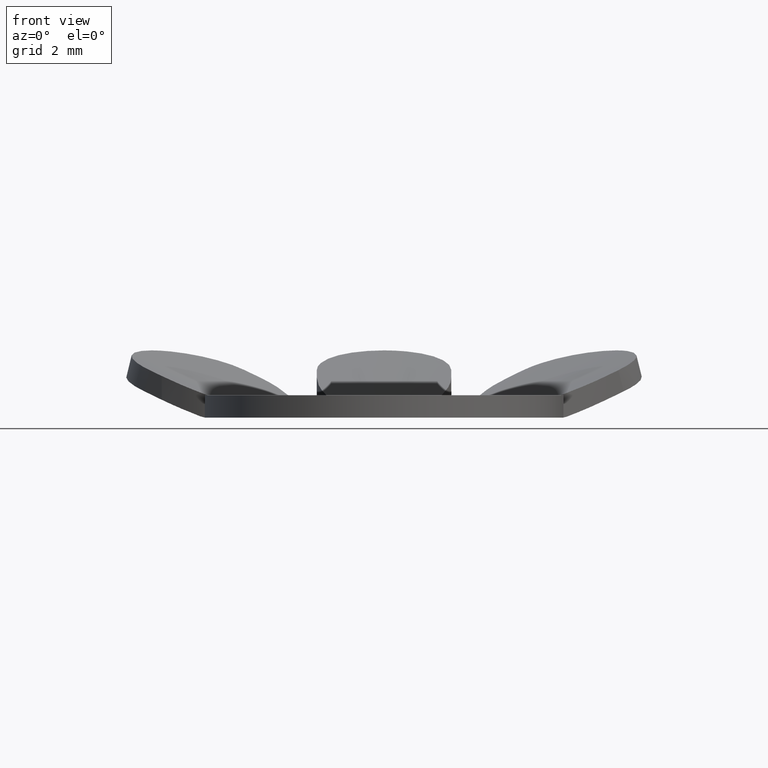
[diagram: clean part render]
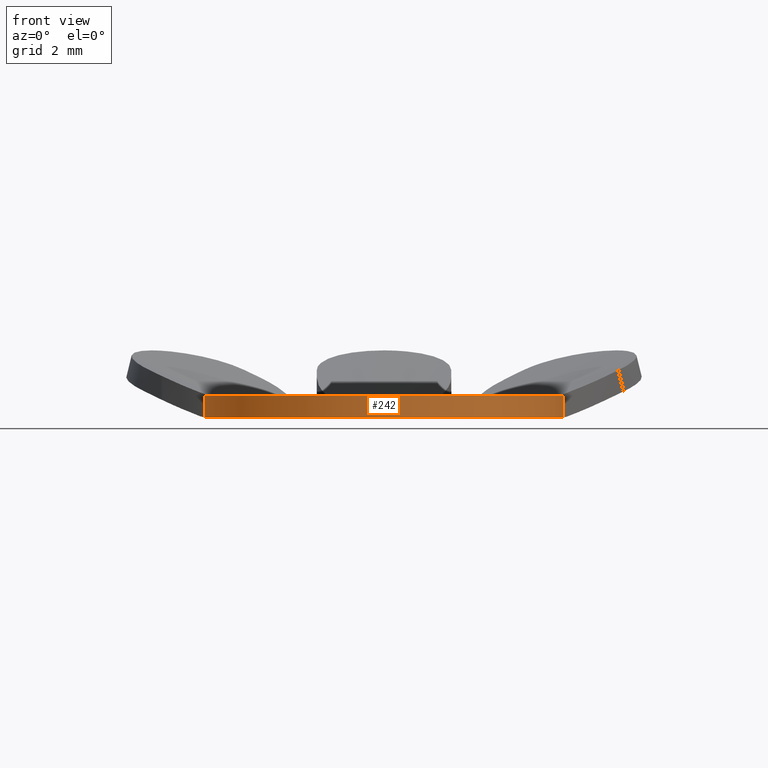
[diagram: same view with one face highlighted and labeled with its STEP entity id]
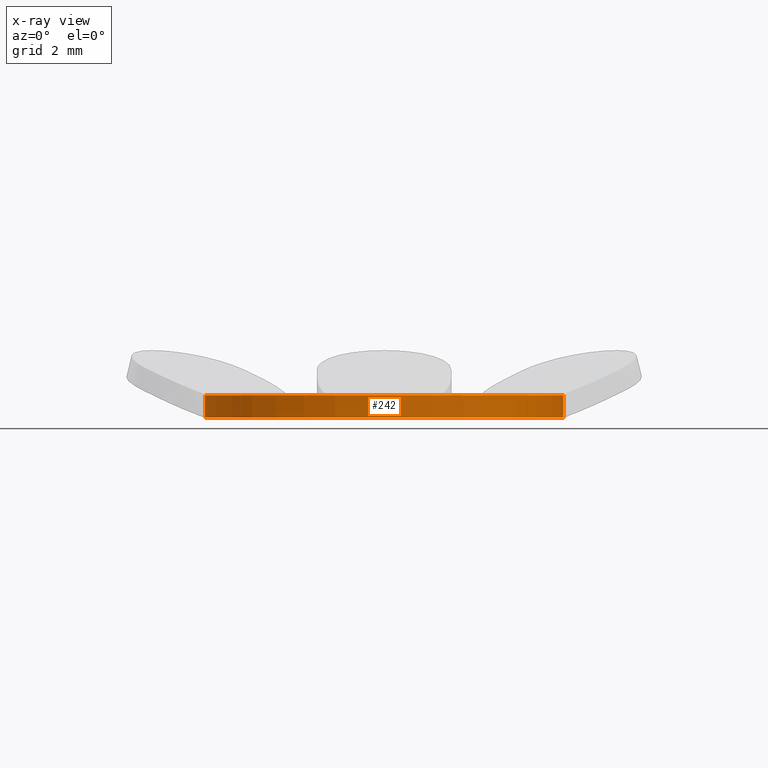
[diagram: x-ray of the same camera — body ghosted, the highlighted face saturated]
A machine part, front view. The second image highlights one B-rep face of the part: STEP entity #242.
The next image is the same camera in x-ray: the body ghosted, the highlighted face saturated — about 0% of this face is hidden behind the body in this view.
In plain terms, the highlighted cylindrical surface (partial cylindrical patch) has radius 4 mm, axis along (0, 0, -1).
Its self-contained STEP definition (entity closure, byte-faithful):
#23 = VERTEX_POINT ( 'NONE', #1702 ) ;
#60 = DIRECTION ( 'NONE',  ( 0.0000000000000000000, 0.0000000000000000000, -1.000000000000000000 ) ) ;
#68 = EDGE_CURVE ( 'NONE', #23, #1324, #527, .T. ) ;
#93 = CARTESIAN_POINT ( 'NONE',  ( 4.000000000000000000, 4.898587196589412800E-016, 1.500000000000000000 ) ) ;
#105 = CARTESIAN_POINT ( 'NONE',  ( 0.0000000000000000000, 0.0000000000000000000, 0.0000000000000000000 ) ) ;
#236 = LINE ( 'NONE', #93, #1600 ) ;
#239 = CARTESIAN_POINT ( 'NONE',  ( -4.000000000000000000, 0.0000000000000000000, 1.500000000000000000 ) ) ;
#242 = ADVANCED_FACE ( 'NONE', ( #348 ), #663, .T. ) ;
#261 = CIRCLE ( 'NONE', #1729, 4.000000000000000000 ) ;
#262 = EDGE_CURVE ( 'NONE', #1270, #1324, #296, .T. ) ;
#263 = ORIENTED_EDGE ( 'NONE', *, *, #262, .F. ) ;
#296 = CIRCLE ( 'NONE', #1113, 4.000000000000000000 ) ;
#348 = FACE_OUTER_BOUND ( 'NONE', #1395, .T. ) ;
#527 = LINE ( 'NONE', #239, #1192 ) ;
#644 = DIRECTION ( 'NONE',  ( -1.000000000000000000, 0.0000000000000000000, 0.0000000000000000000 ) ) ;
#663 = CYLINDRICAL_SURFACE ( 'NONE', #1200, 4.000000000000000000 ) ;
#664 = VERTEX_POINT ( 'NONE', #750 ) ;
#750 = CARTESIAN_POINT ( 'NONE',  ( 4.000000000000000000, 4.898587196589412800E-016, 0.5000000000000002200 ) ) ;
#753 = ORIENTED_EDGE ( 'NONE', *, *, #1190, .F. ) ;
#757 = EDGE_CURVE ( 'NONE', #664, #23, #261, .T. ) ;
#774 = DIRECTION ( 'NONE',  ( -1.000000000000000000, 0.0000000000000000000, 0.0000000000000000000 ) ) ;
#906 = DIRECTION ( 'NONE',  ( -0.0000000000000000000, -0.0000000000000000000, -1.000000000000000000 ) ) ;
#1113 = AXIS2_PLACEMENT_3D ( 'NONE', #105, #906, #774 ) ;
#1163 = DIRECTION ( 'NONE',  ( 0.0000000000000000000, 0.0000000000000000000, -1.000000000000000000 ) ) ;
#1179 = DIRECTION ( 'NONE',  ( 0.0000000000000000000, 0.0000000000000000000, -1.000000000000000000 ) ) ;
#1187 = CARTESIAN_POINT ( 'NONE',  ( 4.000000000000000000, 4.898587196589412800E-016, 0.0000000000000000000 ) ) ;
#1190 = EDGE_CURVE ( 'NONE', #664, #1270, #236, .T. ) ;
#1192 = VECTOR ( 'NONE', #1179, 1000.000000000000000 ) ;
#1200 = AXIS2_PLACEMENT_3D ( 'NONE', #1214, #1319, #644 ) ;
#1214 = CARTESIAN_POINT ( 'NONE',  ( 0.0000000000000000000, 0.0000000000000000000, 1.500000000000000000 ) ) ;
#1270 = VERTEX_POINT ( 'NONE', #1187 ) ;
#1319 = DIRECTION ( 'NONE',  ( 0.0000000000000000000, 0.0000000000000000000, -1.000000000000000000 ) ) ;
#1324 = VERTEX_POINT ( 'NONE', #1357 ) ;
#1343 = ORIENTED_EDGE ( 'NONE', *, *, #757, .T. ) ;
#1357 = CARTESIAN_POINT ( 'NONE',  ( -4.000000000000000000, 0.0000000000000000000, 0.0000000000000000000 ) ) ;
#1395 = EDGE_LOOP ( 'NONE', ( #753, #1343, #1565, #263 ) ) ;
#1410 = DIRECTION ( 'NONE',  ( -1.000000000000000000, 0.0000000000000000000, 0.0000000000000000000 ) ) ;
#1565 = ORIENTED_EDGE ( 'NONE', *, *, #68, .T. ) ;
#1600 = VECTOR ( 'NONE', #1163, 1000.000000000000000 ) ;
#1673 = CARTESIAN_POINT ( 'NONE',  ( 0.0000000000000000000, 0.0000000000000000000, 0.5000000000000002200 ) ) ;
#1702 = CARTESIAN_POINT ( 'NONE',  ( -4.000000000000000000, 0.0000000000000000000, 0.5000000000000002200 ) ) ;
#1729 = AXIS2_PLACEMENT_3D ( 'NONE', #1673, #60, #1410 ) ;